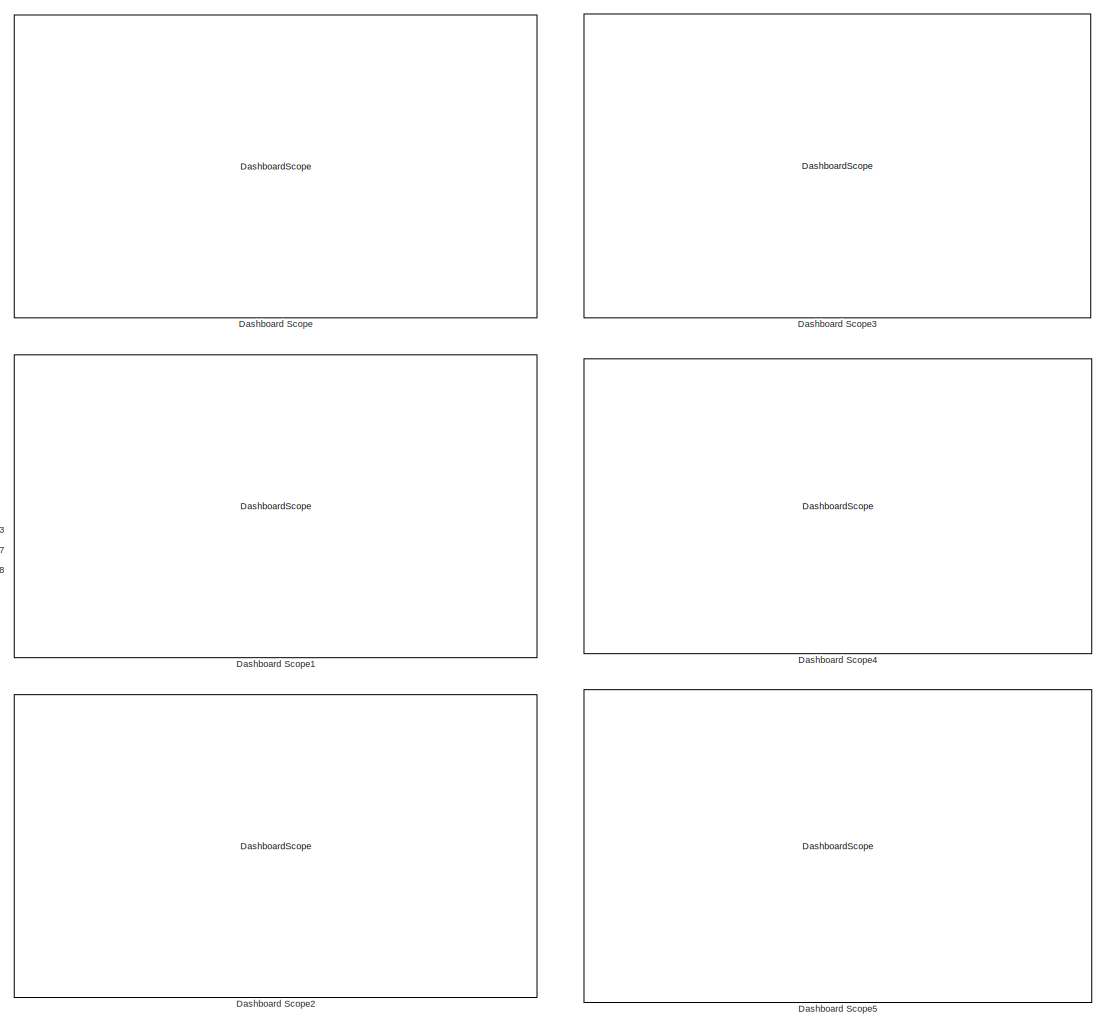
[diagram: root canvas - part 1/2, right side, full height]
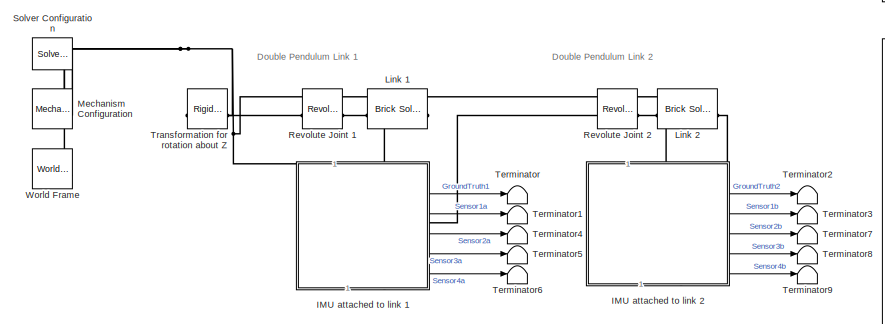
[diagram: root canvas - part 2/2, middle left region]
MODEL slx_7381e107e418
KIND model
CONFIG AbsTol = 1e-3
CONFIG EnableMultiTasking = on
CONFIG FixedStep = auto
CONFIG MaxStep = 0.01
CONFIG MinStep = auto
CONFIG RelTol = 1e-3
CONFIG SampleTimeConstraint = Unconstrained
CONFIG SolverName = VariableStepAuto
CONFIG StartTime = 0.0
CONFIG StopTime = 10.0
BLOCK [DashboardScope] Dashboard Scope
BLOCK [DashboardScope] Dashboard Scope1
BLOCK [DashboardScope] Dashboard Scope2
BLOCK [DashboardScope] Dashboard Scope3
BLOCK [DashboardScope] Dashboard Scope4
BLOCK [DashboardScope] Dashboard Scope5
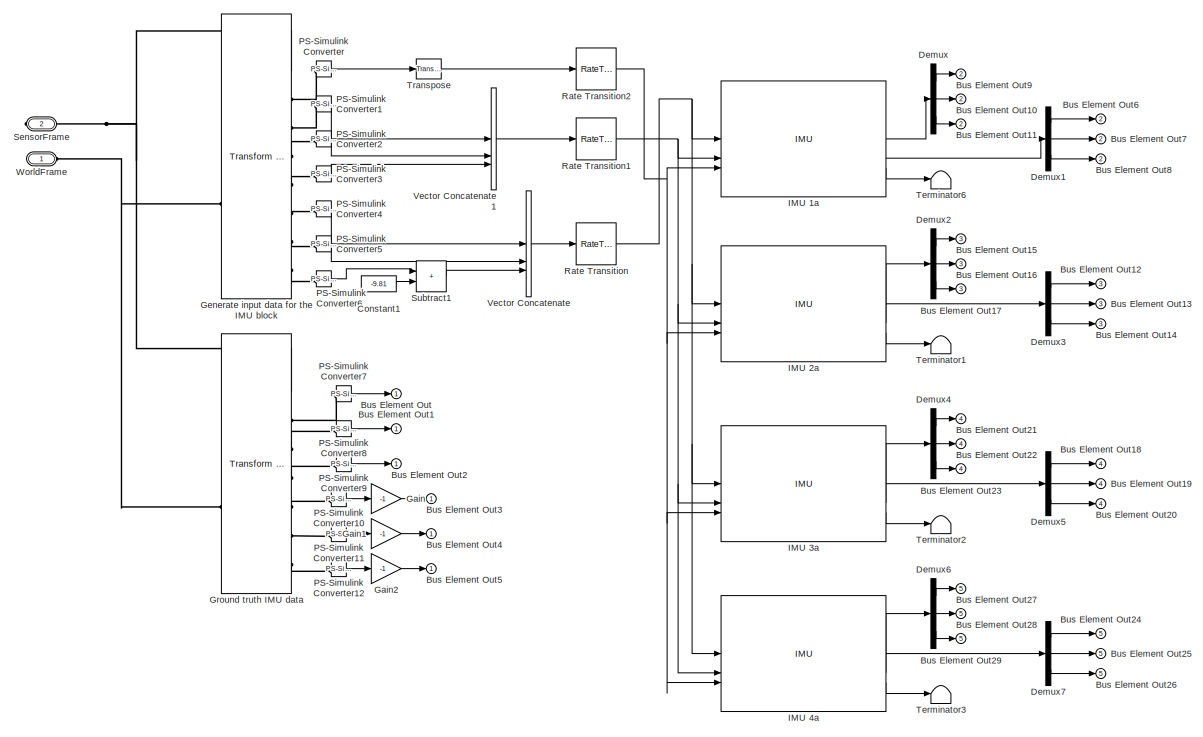
[diagram: IMU attached to link 1 - part 1/2, middle left region]
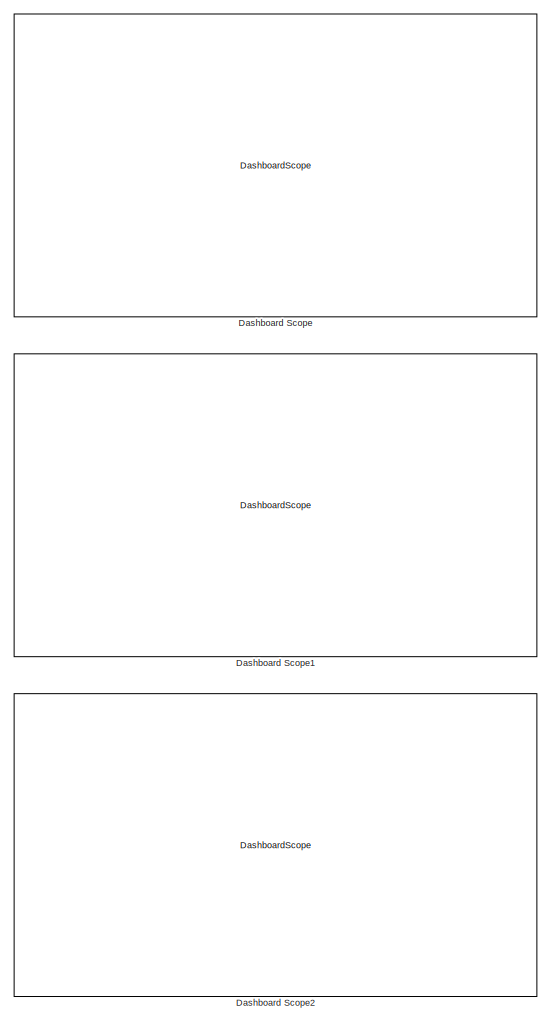
[diagram: IMU attached to link 1 - part 2/2, right side, full height]
BLOCK [SubSystem] IMU attached to link 1
  PortSchema = {"entries":[{"content":{"sides":[{"content":{},"type":"ConnectorPlacement.EquallySpacedRectSide","uuid":"7a848249-f78c-431e-84de-981fe01eaf41"},{"content":{"side":"RIGHT"},"type":"ConnectorPlacement.EquallySpacedRectSide","uuid":"a7aca224-ae93-4c7d-a6de-e3d97876bf59"},{"content":{"connectorIds":["LConn1"],"side":"TOP"},"type":"ConnectorPlacement.EquallySpacedRectSide","uuid":"e9c2225b-3f07-428c-8b...<+389ch>
BLOCK [Outport] IMU attached to link 1/Bus Element Out
BLOCK [Outport] IMU attached to link 1/Bus Element Out1
BLOCK [Outport] IMU attached to link 1/Bus Element Out10
  Port = 2
BLOCK [Outport] IMU attached to link 1/Bus Element Out11
  Port = 2
BLOCK [Outport] IMU attached to link 1/Bus Element Out12
  Port = 3
BLOCK [Outport] IMU attached to link 1/Bus Element Out13
  Port = 3
BLOCK [Outport] IMU attached to link 1/Bus Element Out14
  Port = 3
BLOCK [Outport] IMU attached to link 1/Bus Element Out15
  Port = 3
BLOCK [Outport] IMU attached to link 1/Bus Element Out16
  Port = 3
BLOCK [Outport] IMU attached to link 1/Bus Element Out17
  Port = 3
BLOCK [Outport] IMU attached to link 1/Bus Element Out18
  Port = 4
BLOCK [Outport] IMU attached to link 1/Bus Element Out19
  Port = 4
BLOCK [Outport] IMU attached to link 1/Bus Element Out2
BLOCK [Outport] IMU attached to link 1/Bus Element Out20
  Port = 4
BLOCK [Outport] IMU attached to link 1/Bus Element Out21
  Port = 4
BLOCK [Outport] IMU attached to link 1/Bus Element Out22
  Port = 4
BLOCK [Outport] IMU attached to link 1/Bus Element Out23
  Port = 4
BLOCK [Outport] IMU attached to link 1/Bus Element Out24
  Port = 5
BLOCK [Outport] IMU attached to link 1/Bus Element Out25
  Port = 5
BLOCK [Outport] IMU attached to link 1/Bus Element Out26
  Port = 5
BLOCK [Outport] IMU attached to link 1/Bus Element Out27
  Port = 5
BLOCK [Outport] IMU attached to link 1/Bus Element Out28
  Port = 5
BLOCK [Outport] IMU attached to link 1/Bus Element Out29
  Port = 5
BLOCK [Outport] IMU attached to link 1/Bus Element Out3
BLOCK [Outport] IMU attached to link 1/Bus Element Out4
BLOCK [Outport] IMU attached to link 1/Bus Element Out5
BLOCK [Outport] IMU attached to link 1/Bus Element Out6
  Port = 2
BLOCK [Outport] IMU attached to link 1/Bus Element Out7
  Port = 2
BLOCK [Outport] IMU attached to link 1/Bus Element Out8
  Port = 2
BLOCK [Outport] IMU attached to link 1/Bus Element Out9
  Port = 2
BLOCK [Constant] IMU attached to link 1/Constant1
  Value = -9.81
BLOCK [DashboardScope] IMU attached to link 1/Dashboard Scope
BLOCK [DashboardScope] IMU attached to link 1/Dashboard Scope1
BLOCK [DashboardScope] IMU attached to link 1/Dashboard Scope2
BLOCK [Demux] IMU attached to link 1/Demux
  Outputs = 3
BLOCK [Demux] IMU attached to link 1/Demux1
  Outputs = 3
BLOCK [Demux] IMU attached to link 1/Demux2
  Outputs = 3
BLOCK [Demux] IMU attached to link 1/Demux3
  Outputs = 3
BLOCK [Demux] IMU attached to link 1/Demux4
  Outputs = 3
BLOCK [Demux] IMU attached to link 1/Demux5
  Outputs = 3
BLOCK [Demux] IMU attached to link 1/Demux6
  Outputs = 3
BLOCK [Demux] IMU attached to link 1/Demux7
  Outputs = 3
BLOCK [Gain] IMU attached to link 1/Gain
  Gain = -1
BLOCK [Gain] IMU attached to link 1/Gain1
  Gain = -1
BLOCK [Gain] IMU attached to link 1/Gain2
  Gain = -1
BLOCK [Reference] IMU attached to link 1/Generate input data for the IMU block  REF=sm_lib/Frames and
Transforms/Transform
Sensor
  SourceBlock = sm_lib/Frames and\nTransforms/Transform\nSensor
  SourceType = Transform\nSensor
BLOCK [Reference] IMU attached to link 1/Ground truth IMU data  REF=sm_lib/Frames and
Transforms/Transform
Sensor
  SourceBlock = sm_lib/Frames and\nTransforms/Transform\nSensor
  SourceType = Transform\nSensor
BLOCK [Reference] IMU attached to link 1/IMU 1a  REF=mspsensorlib/IMU
  SourceBlock = mspsensorlib/IMU
  SourceType = fusion.simulink.imuSensor
BLOCK [Reference] IMU attached to link 1/IMU 2a  REF=mspsensorlib/IMU
  SourceBlock = mspsensorlib/IMU
  SourceType = fusion.simulink.imuSensor
BLOCK [Reference] IMU attached to link 1/IMU 3a  REF=mspsensorlib/IMU
  SourceBlock = mspsensorlib/IMU
  SourceType = fusion.simulink.imuSensor
BLOCK [Reference] IMU attached to link 1/IMU 4a  REF=mspsensorlib/IMU
  SourceBlock = mspsensorlib/IMU
  SourceType = fusion.simulink.imuSensor
BLOCK [Reference] IMU attached to link 1/PS-Simulink Converter  REF=nesl_utility/PS-Simulink
Converter
  SourceBlock = nesl_utility/PS-Simulink\nConverter
  SourceType = PS-Simulink\nConverter
BLOCK [Reference] IMU attached to link 1/PS-Simulink Converter1  REF=nesl_utility/PS-Simulink
Converter
  SourceBlock = nesl_utility/PS-Simulink\nConverter
  SourceType = PS-Simulink\nConverter
BLOCK [Reference] IMU attached to link 1/PS-Simulink Converter10  REF=nesl_utility/PS-Simulink
Converter
  SourceBlock = nesl_utility/PS-Simulink\nConverter
  SourceType = PS-Simulink\nConverter
BLOCK [Reference] IMU attached to link 1/PS-Simulink Converter11  REF=nesl_utility/PS-Simulink
Converter
  SourceBlock = nesl_utility/PS-Simulink\nConverter
  SourceType = PS-Simulink\nConverter
BLOCK [Reference] IMU attached to link 1/PS-Simulink Converter12  REF=nesl_utility/PS-Simulink
Converter
  SourceBlock = nesl_utility/PS-Simulink\nConverter
  SourceType = PS-Simulink\nConverter
BLOCK [Reference] IMU attached to link 1/PS-Simulink Converter2  REF=nesl_utility/PS-Simulink
Converter
  SourceBlock = nesl_utility/PS-Simulink\nConverter
  SourceType = PS-Simulink\nConverter
BLOCK [Reference] IMU attached to link 1/PS-Simulink Converter3  REF=nesl_utility/PS-Simulink
Converter
  SourceBlock = nesl_utility/PS-Simulink\nConverter
  SourceType = PS-Simulink\nConverter
BLOCK [Reference] IMU attached to link 1/PS-Simulink Converter4  REF=nesl_utility/PS-Simulink
Converter
  SourceBlock = nesl_utility/PS-Simulink\nConverter
  SourceType = PS-Simulink\nConverter
BLOCK [Reference] IMU attached to link 1/PS-Simulink Converter5  REF=nesl_utility/PS-Simulink
Converter
  SourceBlock = nesl_utility/PS-Simulink\nConverter
  SourceType = PS-Simulink\nConverter
BLOCK [Reference] IMU attached to link 1/PS-Simulink Converter6  REF=nesl_utility/PS-Simulink
Converter
  SourceBlock = nesl_utility/PS-Simulink\nConverter
  SourceType = PS-Simulink\nConverter
BLOCK [Reference] IMU attached to link 1/PS-Simulink Converter7  REF=nesl_utility/PS-Simulink
Converter
  SourceBlock = nesl_utility/PS-Simulink\nConverter
  SourceType = PS-Simulink\nConverter
BLOCK [Reference] IMU attached to link 1/PS-Simulink Converter8  REF=nesl_utility/PS-Simulink
Converter
  SourceBlock = nesl_utility/PS-Simulink\nConverter
  SourceType = PS-Simulink\nConverter
BLOCK [Reference] IMU attached to link 1/PS-Simulink Converter9  REF=nesl_utility/PS-Simulink
Converter
  SourceBlock = nesl_utility/PS-Simulink\nConverter
  SourceType = PS-Simulink\nConverter
BLOCK [RateTransition] IMU attached to link 1/Rate Transition
  OutPortSampleTime = Fs_time
BLOCK [RateTransition] IMU attached to link 1/Rate Transition1
  OutPortSampleTime = Fs_time
BLOCK [RateTransition] IMU attached to link 1/Rate Transition2
  OutPortSampleTime = Fs_time
BLOCK [PMIOPort] IMU attached to link 1/SensorFrame
  Port = 2
  Side = Right
BLOCK [Sum] IMU attached to link 1/Subtract1
  IconShape = rectangular
BLOCK [Terminator] IMU attached to link 1/Terminator1
BLOCK [Terminator] IMU attached to link 1/Terminator2
BLOCK [Terminator] IMU attached to link 1/Terminator3
BLOCK [Terminator] IMU attached to link 1/Terminator6
BLOCK [Reference] IMU attached to link 1/Transpose  REF=matrix_library/Transpose
  LibrarySourceBlock = simulink/Matrix\nOperations/Transpose
  SourceBlock = matrix_library/Transpose
  SourceType = Transpose
BLOCK [Concatenate] IMU attached to link 1/Vector Concatenate
  ConcatenateDimension = 2
  Mode = Multidimensional array
  NumInputs = 3
BLOCK [Concatenate] IMU attached to link 1/Vector Concatenate1
  ConcatenateDimension = 2
  Mode = Multidimensional array
  NumInputs = 3
BLOCK [PMIOPort] IMU attached to link 1/WorldFrame
  Side = Left
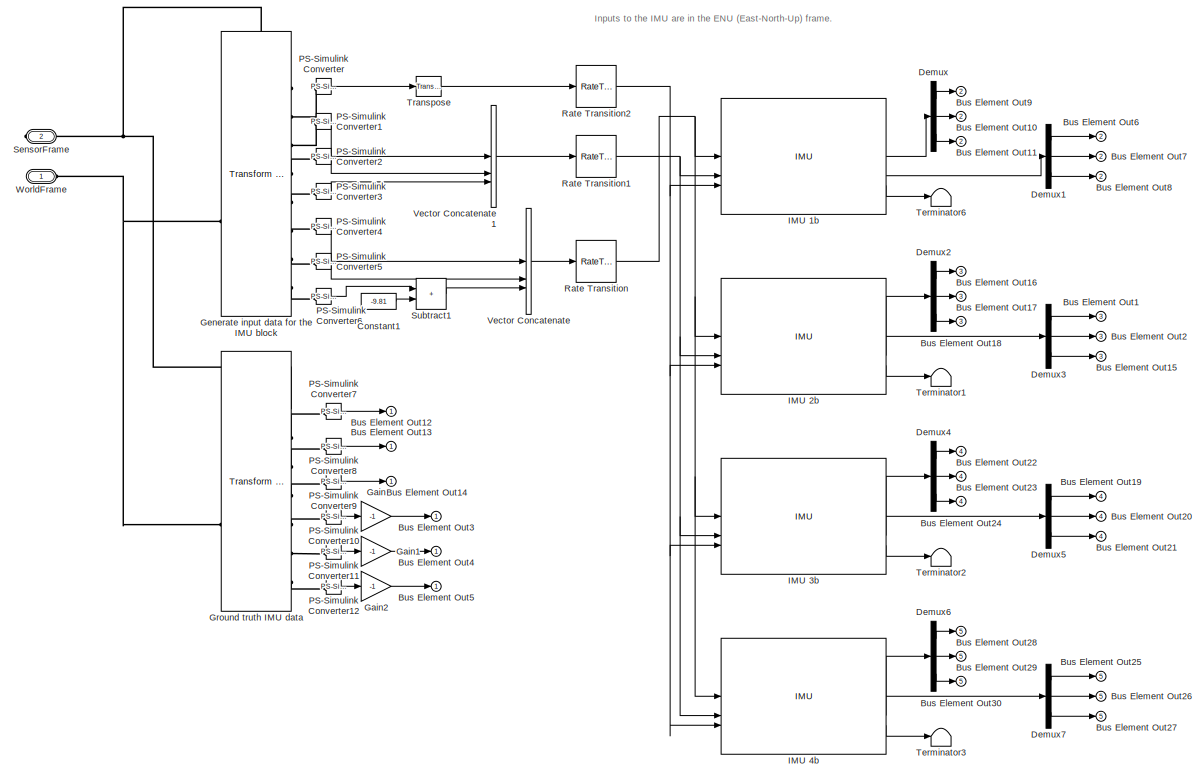
[diagram: IMU attached to link 2 - part 1/2, middle left region]
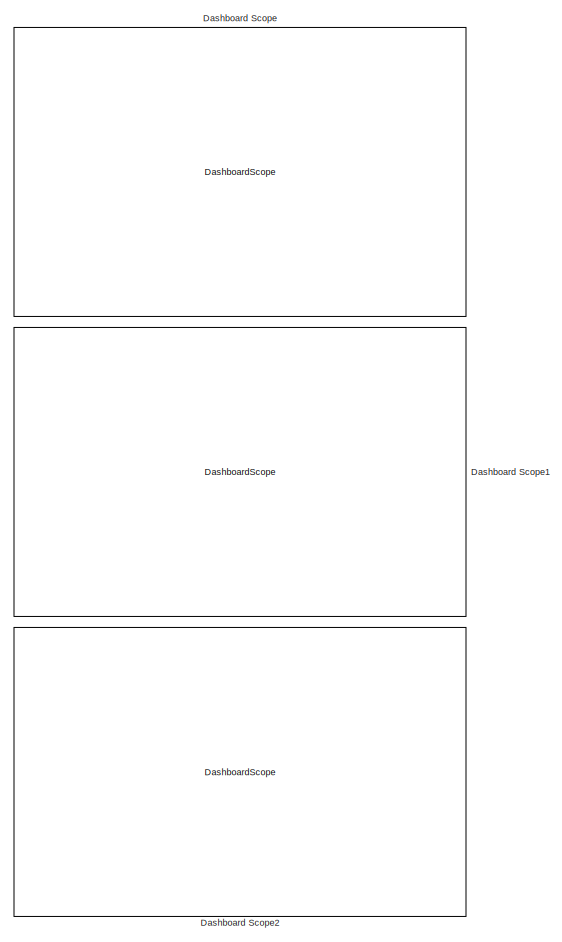
[diagram: IMU attached to link 2 - part 2/2, right side, full height]
BLOCK [SubSystem] IMU attached to link 2
  PortSchema = {"entries":[{"content":{"sides":[{"content":{},"type":"ConnectorPlacement.EquallySpacedRectSide","uuid":"7a848249-f78c-431e-84de-981fe01eaf41"},{"content":{"side":"RIGHT"},"type":"ConnectorPlacement.EquallySpacedRectSide","uuid":"a7aca224-ae93-4c7d-a6de-e3d97876bf59"},{"content":{"connectorIds":["LConn1"],"side":"TOP"},"type":"ConnectorPlacement.EquallySpacedRectSide","uuid":"e9c2225b-3f07-428c-8b...<+389ch>
BLOCK [Outport] IMU attached to link 2/Bus Element Out1
  Port = 3
BLOCK [Outport] IMU attached to link 2/Bus Element Out10
  Port = 2
BLOCK [Outport] IMU attached to link 2/Bus Element Out11
  Port = 2
BLOCK [Outport] IMU attached to link 2/Bus Element Out12
BLOCK [Outport] IMU attached to link 2/Bus Element Out13
BLOCK [Outport] IMU attached to link 2/Bus Element Out14
BLOCK [Outport] IMU attached to link 2/Bus Element Out15
  Port = 3
BLOCK [Outport] IMU attached to link 2/Bus Element Out16
  Port = 3
BLOCK [Outport] IMU attached to link 2/Bus Element Out17
  Port = 3
BLOCK [Outport] IMU attached to link 2/Bus Element Out18
  Port = 3
BLOCK [Outport] IMU attached to link 2/Bus Element Out19
  Port = 4
BLOCK [Outport] IMU attached to link 2/Bus Element Out2
  Port = 3
BLOCK [Outport] IMU attached to link 2/Bus Element Out20
  Port = 4
BLOCK [Outport] IMU attached to link 2/Bus Element Out21
  Port = 4
BLOCK [Outport] IMU attached to link 2/Bus Element Out22
  Port = 4
BLOCK [Outport] IMU attached to link 2/Bus Element Out23
  Port = 4
BLOCK [Outport] IMU attached to link 2/Bus Element Out24
  Port = 4
BLOCK [Outport] IMU attached to link 2/Bus Element Out25
  Port = 5
BLOCK [Outport] IMU attached to link 2/Bus Element Out26
  Port = 5
BLOCK [Outport] IMU attached to link 2/Bus Element Out27
  Port = 5
BLOCK [Outport] IMU attached to link 2/Bus Element Out28
  Port = 5
BLOCK [Outport] IMU attached to link 2/Bus Element Out29
  Port = 5
BLOCK [Outport] IMU attached to link 2/Bus Element Out3
BLOCK [Outport] IMU attached to link 2/Bus Element Out30
  Port = 5
BLOCK [Outport] IMU attached to link 2/Bus Element Out4
BLOCK [Outport] IMU attached to link 2/Bus Element Out5
BLOCK [Outport] IMU attached to link 2/Bus Element Out6
  Port = 2
BLOCK [Outport] IMU attached to link 2/Bus Element Out7
  Port = 2
BLOCK [Outport] IMU attached to link 2/Bus Element Out8
  Port = 2
BLOCK [Outport] IMU attached to link 2/Bus Element Out9
  Port = 2
BLOCK [Constant] IMU attached to link 2/Constant1
  Value = -9.81
BLOCK [DashboardScope] IMU attached to link 2/Dashboard Scope
BLOCK [DashboardScope] IMU attached to link 2/Dashboard Scope1
BLOCK [DashboardScope] IMU attached to link 2/Dashboard Scope2
BLOCK [Demux] IMU attached to link 2/Demux
  Outputs = 3
BLOCK [Demux] IMU attached to link 2/Demux1
  Outputs = 3
BLOCK [Demux] IMU attached to link 2/Demux2
  Outputs = 3
BLOCK [Demux] IMU attached to link 2/Demux3
  Outputs = 3
BLOCK [Demux] IMU attached to link 2/Demux4
  Outputs = 3
BLOCK [Demux] IMU attached to link 2/Demux5
  Outputs = 3
BLOCK [Demux] IMU attached to link 2/Demux6
  Outputs = 3
BLOCK [Demux] IMU attached to link 2/Demux7
  Outputs = 3
BLOCK [Gain] IMU attached to link 2/Gain
  Gain = -1
BLOCK [Gain] IMU attached to link 2/Gain1
  Gain = -1
BLOCK [Gain] IMU attached to link 2/Gain2
  Gain = -1
BLOCK [Reference] IMU attached to link 2/Generate input data for the IMU block  REF=sm_lib/Frames and
Transforms/Transform
Sensor
  SourceBlock = sm_lib/Frames and\nTransforms/Transform\nSensor
  SourceType = Transform\nSensor
BLOCK [Reference] IMU attached to link 2/Ground truth IMU data  REF=sm_lib/Frames and
Transforms/Transform
Sensor
  SourceBlock = sm_lib/Frames and\nTransforms/Transform\nSensor
  SourceType = Transform\nSensor
BLOCK [Reference] IMU attached to link 2/IMU 1b  REF=mspsensorlib/IMU
  SourceBlock = mspsensorlib/IMU
  SourceType = fusion.simulink.imuSensor
BLOCK [Reference] IMU attached to link 2/IMU 2b  REF=mspsensorlib/IMU
  SourceBlock = mspsensorlib/IMU
  SourceType = fusion.simulink.imuSensor
BLOCK [Reference] IMU attached to link 2/IMU 3b  REF=mspsensorlib/IMU
  SourceBlock = mspsensorlib/IMU
  SourceType = fusion.simulink.imuSensor
BLOCK [Reference] IMU attached to link 2/IMU 4b  REF=mspsensorlib/IMU
  SourceBlock = mspsensorlib/IMU
  SourceType = fusion.simulink.imuSensor
BLOCK [Reference] IMU attached to link 2/PS-Simulink Converter  REF=nesl_utility/PS-Simulink
Converter
  SourceBlock = nesl_utility/PS-Simulink\nConverter
  SourceType = PS-Simulink\nConverter
BLOCK [Reference] IMU attached to link 2/PS-Simulink Converter1  REF=nesl_utility/PS-Simulink
Converter
  SourceBlock = nesl_utility/PS-Simulink\nConverter
  SourceType = PS-Simulink\nConverter
BLOCK [Reference] IMU attached to link 2/PS-Simulink Converter10  REF=nesl_utility/PS-Simulink
Converter
  SourceBlock = nesl_utility/PS-Simulink\nConverter
  SourceType = PS-Simulink\nConverter
BLOCK [Reference] IMU attached to link 2/PS-Simulink Converter11  REF=nesl_utility/PS-Simulink
Converter
  SourceBlock = nesl_utility/PS-Simulink\nConverter
  SourceType = PS-Simulink\nConverter
BLOCK [Reference] IMU attached to link 2/PS-Simulink Converter12  REF=nesl_utility/PS-Simulink
Converter
  SourceBlock = nesl_utility/PS-Simulink\nConverter
  SourceType = PS-Simulink\nConverter
BLOCK [Reference] IMU attached to link 2/PS-Simulink Converter2  REF=nesl_utility/PS-Simulink
Converter
  SourceBlock = nesl_utility/PS-Simulink\nConverter
  SourceType = PS-Simulink\nConverter
BLOCK [Reference] IMU attached to link 2/PS-Simulink Converter3  REF=nesl_utility/PS-Simulink
Converter
  SourceBlock = nesl_utility/PS-Simulink\nConverter
  SourceType = PS-Simulink\nConverter
BLOCK [Reference] IMU attached to link 2/PS-Simulink Converter4  REF=nesl_utility/PS-Simulink
Converter
  SourceBlock = nesl_utility/PS-Simulink\nConverter
  SourceType = PS-Simulink\nConverter
BLOCK [Reference] IMU attached to link 2/PS-Simulink Converter5  REF=nesl_utility/PS-Simulink
Converter
  SourceBlock = nesl_utility/PS-Simulink\nConverter
  SourceType = PS-Simulink\nConverter
BLOCK [Reference] IMU attached to link 2/PS-Simulink Converter6  REF=nesl_utility/PS-Simulink
Converter
  SourceBlock = nesl_utility/PS-Simulink\nConverter
  SourceType = PS-Simulink\nConverter
BLOCK [Reference] IMU attached to link 2/PS-Simulink Converter7  REF=nesl_utility/PS-Simulink
Converter
  SourceBlock = nesl_utility/PS-Simulink\nConverter
  SourceType = PS-Simulink\nConverter
BLOCK [Reference] IMU attached to link 2/PS-Simulink Converter8  REF=nesl_utility/PS-Simulink
Converter
  SourceBlock = nesl_utility/PS-Simulink\nConverter
  SourceType = PS-Simulink\nConverter
BLOCK [Reference] IMU attached to link 2/PS-Simulink Converter9  REF=nesl_utility/PS-Simulink
Converter
  SourceBlock = nesl_utility/PS-Simulink\nConverter
  SourceType = PS-Simulink\nConverter
BLOCK [RateTransition] IMU attached to link 2/Rate Transition
  OutPortSampleTime = Fs_time
BLOCK [RateTransition] IMU attached to link 2/Rate Transition1
  OutPortSampleTime = Fs_time
BLOCK [RateTransition] IMU attached to link 2/Rate Transition2
  OutPortSampleTime = Fs_time
BLOCK [PMIOPort] IMU attached to link 2/SensorFrame
  Port = 2
  Side = Right
BLOCK [Sum] IMU attached to link 2/Subtract1
  IconShape = rectangular
BLOCK [Terminator] IMU attached to link 2/Terminator1
BLOCK [Terminator] IMU attached to link 2/Terminator2
BLOCK [Terminator] IMU attached to link 2/Terminator3
BLOCK [Terminator] IMU attached to link 2/Terminator6
BLOCK [Reference] IMU attached to link 2/Transpose  REF=matrix_library/Transpose
  LibrarySourceBlock = simulink/Matrix\nOperations/Transpose
  SourceBlock = matrix_library/Transpose
  SourceType = Transpose
BLOCK [Concatenate] IMU attached to link 2/Vector Concatenate
  ConcatenateDimension = 2
  Mode = Multidimensional array
  NumInputs = 3
BLOCK [Concatenate] IMU attached to link 2/Vector Concatenate1
  ConcatenateDimension = 2
  Mode = Multidimensional array
  NumInputs = 3
BLOCK [PMIOPort] IMU attached to link 2/WorldFrame
  Side = Left
BLOCK [Reference] Link 1  REF=sm_lib/Body Elements/Brick Solid
  SourceBlock = sm_lib/Body Elements/Brick Solid
  SourceType = Brick Solid
BLOCK [Reference] Link 2  REF=sm_lib/Body Elements/Brick Solid
  SourceBlock = sm_lib/Body Elements/Brick Solid
  SourceType = Brick Solid
BLOCK [Reference] Mechanism Configuration  REF=sm_lib/Utilities/Mechanism
Configuration
  SourceBlock = sm_lib/Utilities/Mechanism\nConfiguration
  SourceType = Mechanism\nConfiguration
BLOCK [Reference] Revolute Joint 1  REF=sm_lib/Joints/Revolute Joint
  SourceBlock = sm_lib/Joints/Revolute Joint
  SourceType = Revolute Joint
BLOCK [Reference] Revolute Joint 2  REF=sm_lib/Joints/Revolute Joint
  SourceBlock = sm_lib/Joints/Revolute Joint
  SourceType = Revolute Joint
BLOCK [Reference] Solver Configuration  REF=nesl_utility/Solver
Configuration
  SourceBlock = nesl_utility/Solver\nConfiguration
  SourceType = Solver\nConfiguration
BLOCK [Terminator] Terminator
BLOCK [Terminator] Terminator1
BLOCK [Terminator] Terminator2
BLOCK [Terminator] Terminator3
BLOCK [Terminator] Terminator4
BLOCK [Terminator] Terminator5
BLOCK [Terminator] Terminator6
BLOCK [Terminator] Terminator7
BLOCK [Terminator] Terminator8
BLOCK [Terminator] Terminator9
BLOCK [Reference] Transformation for rotation about Z  REF=sm_lib/Frames and
Transforms/Rigid
Transform
  SourceBlock = sm_lib/Frames and\nTransforms/Rigid\nTransform
  SourceType = Rigid\nTransform
BLOCK [Reference] World Frame  REF=sm_lib/Frames and
Transforms/World Frame
  SourceBlock = sm_lib/Frames and\nTransforms/World Frame
  SourceType = World Frame
ANNOTATION (root): Double Pendulum Link 1
ANNOTATION (root): Double Pendulum Link 2
ANNOTATION IMU attached to link 2: Inputs to the IMU are in the ENU (East-North-Up) frame.
LINE IMU attached to link 1/Constant1:1 -> IMU attached to link 1/Subtract1:2
LINE IMU attached to link 1/Demux1:1 -> IMU attached to link 1/Bus Element Out6:1
LINE IMU attached to link 1/Demux1:2 -> IMU attached to link 1/Bus Element Out7:1
LINE IMU attached to link 1/Demux1:3 -> IMU attached to link 1/Bus Element Out8:1
LINE IMU attached to link 1/Demux2:1 -> IMU attached to link 1/Bus Element Out15:1
LINE IMU attached to link 1/Demux2:2 -> IMU attached to link 1/Bus Element Out16:1
LINE IMU attached to link 1/Demux2:3 -> IMU attached to link 1/Bus Element Out17:1
LINE IMU attached to link 1/Demux3:1 -> IMU attached to link 1/Bus Element Out12:1
LINE IMU attached to link 1/Demux3:2 -> IMU attached to link 1/Bus Element Out13:1
LINE IMU attached to link 1/Demux3:3 -> IMU attached to link 1/Bus Element Out14:1
LINE IMU attached to link 1/Demux4:1 -> IMU attached to link 1/Bus Element Out21:1
LINE IMU attached to link 1/Demux4:2 -> IMU attached to link 1/Bus Element Out22:1
LINE IMU attached to link 1/Demux4:3 -> IMU attached to link 1/Bus Element Out23:1
LINE IMU attached to link 1/Demux5:1 -> IMU attached to link 1/Bus Element Out18:1
LINE IMU attached to link 1/Demux5:2 -> IMU attached to link 1/Bus Element Out19:1
LINE IMU attached to link 1/Demux5:3 -> IMU attached to link 1/Bus Element Out20:1
LINE IMU attached to link 1/Demux6:1 -> IMU attached to link 1/Bus Element Out27:1
LINE IMU attached to link 1/Demux6:2 -> IMU attached to link 1/Bus Element Out28:1
LINE IMU attached to link 1/Demux6:3 -> IMU attached to link 1/Bus Element Out29:1
LINE IMU attached to link 1/Demux7:1 -> IMU attached to link 1/Bus Element Out24:1
LINE IMU attached to link 1/Demux7:2 -> IMU attached to link 1/Bus Element Out25:1
LINE IMU attached to link 1/Demux7:3 -> IMU attached to link 1/Bus Element Out26:1
LINE IMU attached to link 1/Demux:1 -> IMU attached to link 1/Bus Element Out9:1
LINE IMU attached to link 1/Demux:2 -> IMU attached to link 1/Bus Element Out10:1
LINE IMU attached to link 1/Demux:3 -> IMU attached to link 1/Bus Element Out11:1
LINE IMU attached to link 1/Gain1:1 -> IMU attached to link 1/Bus Element Out4:1
LINE IMU attached to link 1/Gain2:1 -> IMU attached to link 1/Bus Element Out5:1
LINE IMU attached to link 1/Gain:1 -> IMU attached to link 1/Bus Element Out3:1
LINE IMU attached to link 1/IMU 1a:1 -> IMU attached to link 1/Demux:1
LINE IMU attached to link 1/IMU 1a:2 -> IMU attached to link 1/Demux1:1
LINE IMU attached to link 1/IMU 1a:3 -> IMU attached to link 1/Terminator6:1
LINE IMU attached to link 1/IMU 2a:1 -> IMU attached to link 1/Demux2:1
LINE IMU attached to link 1/IMU 2a:2 -> IMU attached to link 1/Demux3:1
LINE IMU attached to link 1/IMU 2a:3 -> IMU attached to link 1/Terminator1:1
LINE IMU attached to link 1/IMU 3a:1 -> IMU attached to link 1/Demux4:1
LINE IMU attached to link 1/IMU 3a:2 -> IMU attached to link 1/Demux5:1
LINE IMU attached to link 1/IMU 3a:3 -> IMU attached to link 1/Terminator2:1
LINE IMU attached to link 1/IMU 4a:1 -> IMU attached to link 1/Demux6:1
LINE IMU attached to link 1/IMU 4a:2 -> IMU attached to link 1/Demux7:1
LINE IMU attached to link 1/IMU 4a:3 -> IMU attached to link 1/Terminator3:1
LINE IMU attached to link 1/PS-Simulink Converter10:1 -> IMU attached to link 1/Gain:1
LINE IMU attached to link 1/PS-Simulink Converter11:1 -> IMU attached to link 1/Gain1:1
LINE IMU attached to link 1/PS-Simulink Converter12:1 -> IMU attached to link 1/Gain2:1
LINE IMU attached to link 1/PS-Simulink Converter1:1 -> IMU attached to link 1/Vector Concatenate1:1
LINE IMU attached to link 1/PS-Simulink Converter2:1 -> IMU attached to link 1/Vector Concatenate1:2
LINE IMU attached to link 1/PS-Simulink Converter3:1 -> IMU attached to link 1/Vector Concatenate1:3
LINE IMU attached to link 1/PS-Simulink Converter4:1 -> IMU attached to link 1/Vector Concatenate:1
LINE IMU attached to link 1/PS-Simulink Converter5:1 -> IMU attached to link 1/Vector Concatenate:2
LINE IMU attached to link 1/PS-Simulink Converter6:1 -> IMU attached to link 1/Subtract1:1
LINE IMU attached to link 1/PS-Simulink Converter7:1 -> IMU attached to link 1/Bus Element Out:1
LINE IMU attached to link 1/PS-Simulink Converter8:1 -> IMU attached to link 1/Bus Element Out1:1
LINE IMU attached to link 1/PS-Simulink Converter9:1 -> IMU attached to link 1/Bus Element Out2:1
LINE IMU attached to link 1/PS-Simulink Converter:1 -> IMU attached to link 1/Transpose:1
NET IMU attached to link 1/Rate Transition1:1 -> IMU attached to link 1/IMU 1a:2, IMU attached to link 1/IMU 2a:2, IMU attached to link 1/IMU 3a:2, IMU attached to link 1/IMU 4a:2
NET IMU attached to link 1/Rate Transition2:1 -> IMU attached to link 1/IMU 1a:3, IMU attached to link 1/IMU 2a:3, IMU attached to link 1/IMU 3a:3, IMU attached to link 1/IMU 4a:3
NET IMU attached to link 1/Rate Transition:1 -> IMU attached to link 1/IMU 1a:1, IMU attached to link 1/IMU 2a:1, IMU attached to link 1/IMU 3a:1, IMU attached to link 1/IMU 4a:1
LINE IMU attached to link 1/Subtract1:1 -> IMU attached to link 1/Vector Concatenate:3
LINE IMU attached to link 1/Transpose:1 -> IMU attached to link 1/Rate Transition2:1
LINE IMU attached to link 1/Vector Concatenate1:1 -> IMU attached to link 1/Rate Transition1:1
LINE IMU attached to link 1/Vector Concatenate:1 -> IMU attached to link 1/Rate Transition:1
LINE IMU attached to link 1:1 -> Terminator:1
LINE IMU attached to link 1:2 -> Terminator1:1
LINE IMU attached to link 1:3 -> Terminator4:1
LINE IMU attached to link 1:4 -> Terminator5:1
LINE IMU attached to link 1:5 -> Terminator6:1
LINE IMU attached to link 2/Constant1:1 -> IMU attached to link 2/Subtract1:2
LINE IMU attached to link 2/Demux1:1 -> IMU attached to link 2/Bus Element Out6:1
LINE IMU attached to link 2/Demux1:2 -> IMU attached to link 2/Bus Element Out7:1
LINE IMU attached to link 2/Demux1:3 -> IMU attached to link 2/Bus Element Out8:1
LINE IMU attached to link 2/Demux2:1 -> IMU attached to link 2/Bus Element Out16:1
LINE IMU attached to link 2/Demux2:2 -> IMU attached to link 2/Bus Element Out17:1
LINE IMU attached to link 2/Demux2:3 -> IMU attached to link 2/Bus Element Out18:1
LINE IMU attached to link 2/Demux3:1 -> IMU attached to link 2/Bus Element Out1:1
LINE IMU attached to link 2/Demux3:2 -> IMU attached to link 2/Bus Element Out2:1
LINE IMU attached to link 2/Demux3:3 -> IMU attached to link 2/Bus Element Out15:1
LINE IMU attached to link 2/Demux4:1 -> IMU attached to link 2/Bus Element Out22:1
LINE IMU attached to link 2/Demux4:2 -> IMU attached to link 2/Bus Element Out23:1
LINE IMU attached to link 2/Demux4:3 -> IMU attached to link 2/Bus Element Out24:1
LINE IMU attached to link 2/Demux5:1 -> IMU attached to link 2/Bus Element Out19:1
LINE IMU attached to link 2/Demux5:2 -> IMU attached to link 2/Bus Element Out20:1
LINE IMU attached to link 2/Demux5:3 -> IMU attached to link 2/Bus Element Out21:1
LINE IMU attached to link 2/Demux6:1 -> IMU attached to link 2/Bus Element Out28:1
LINE IMU attached to link 2/Demux6:2 -> IMU attached to link 2/Bus Element Out29:1
LINE IMU attached to link 2/Demux6:3 -> IMU attached to link 2/Bus Element Out30:1
LINE IMU attached to link 2/Demux7:1 -> IMU attached to link 2/Bus Element Out25:1
LINE IMU attached to link 2/Demux7:2 -> IMU attached to link 2/Bus Element Out26:1
LINE IMU attached to link 2/Demux7:3 -> IMU attached to link 2/Bus Element Out27:1
LINE IMU attached to link 2/Demux:1 -> IMU attached to link 2/Bus Element Out9:1
LINE IMU attached to link 2/Demux:2 -> IMU attached to link 2/Bus Element Out10:1
LINE IMU attached to link 2/Demux:3 -> IMU attached to link 2/Bus Element Out11:1
LINE IMU attached to link 2/Gain1:1 -> IMU attached to link 2/Bus Element Out4:1
LINE IMU attached to link 2/Gain2:1 -> IMU attached to link 2/Bus Element Out5:1
LINE IMU attached to link 2/Gain:1 -> IMU attached to link 2/Bus Element Out3:1
LINE IMU attached to link 2/IMU 1b:1 -> IMU attached to link 2/Demux:1
LINE IMU attached to link 2/IMU 1b:2 -> IMU attached to link 2/Demux1:1
LINE IMU attached to link 2/IMU 1b:3 -> IMU attached to link 2/Terminator6:1
LINE IMU attached to link 2/IMU 2b:1 -> IMU attached to link 2/Demux2:1
LINE IMU attached to link 2/IMU 2b:2 -> IMU attached to link 2/Demux3:1
LINE IMU attached to link 2/IMU 2b:3 -> IMU attached to link 2/Terminator1:1
LINE IMU attached to link 2/IMU 3b:1 -> IMU attached to link 2/Demux4:1
LINE IMU attached to link 2/IMU 3b:2 -> IMU attached to link 2/Demux5:1
LINE IMU attached to link 2/IMU 3b:3 -> IMU attached to link 2/Terminator2:1
LINE IMU attached to link 2/IMU 4b:1 -> IMU attached to link 2/Demux6:1
LINE IMU attached to link 2/IMU 4b:2 -> IMU attached to link 2/Demux7:1
LINE IMU attached to link 2/IMU 4b:3 -> IMU attached to link 2/Terminator3:1
LINE IMU attached to link 2/PS-Simulink Converter10:1 -> IMU attached to link 2/Gain:1
LINE IMU attached to link 2/PS-Simulink Converter11:1 -> IMU attached to link 2/Gain1:1
LINE IMU attached to link 2/PS-Simulink Converter12:1 -> IMU attached to link 2/Gain2:1
LINE IMU attached to link 2/PS-Simulink Converter1:1 -> IMU attached to link 2/Vector Concatenate1:1
LINE IMU attached to link 2/PS-Simulink Converter2:1 -> IMU attached to link 2/Vector Concatenate1:2
LINE IMU attached to link 2/PS-Simulink Converter3:1 -> IMU attached to link 2/Vector Concatenate1:3
LINE IMU attached to link 2/PS-Simulink Converter4:1 -> IMU attached to link 2/Vector Concatenate:1
LINE IMU attached to link 2/PS-Simulink Converter5:1 -> IMU attached to link 2/Vector Concatenate:2
LINE IMU attached to link 2/PS-Simulink Converter6:1 -> IMU attached to link 2/Subtract1:1
LINE IMU attached to link 2/PS-Simulink Converter7:1 -> IMU attached to link 2/Bus Element Out12:1
LINE IMU attached to link 2/PS-Simulink Converter8:1 -> IMU attached to link 2/Bus Element Out13:1
LINE IMU attached to link 2/PS-Simulink Converter9:1 -> IMU attached to link 2/Bus Element Out14:1
LINE IMU attached to link 2/PS-Simulink Converter:1 -> IMU attached to link 2/Transpose:1
NET IMU attached to link 2/Rate Transition1:1 -> IMU attached to link 2/IMU 1b:2, IMU attached to link 2/IMU 2b:2, IMU attached to link 2/IMU 3b:2, IMU attached to link 2/IMU 4b:2
NET IMU attached to link 2/Rate Transition2:1 -> IMU attached to link 2/IMU 1b:3, IMU attached to link 2/IMU 2b:3, IMU attached to link 2/IMU 3b:3, IMU attached to link 2/IMU 4b:3
NET IMU attached to link 2/Rate Transition:1 -> IMU attached to link 2/IMU 1b:1, IMU attached to link 2/IMU 2b:1, IMU attached to link 2/IMU 3b:1, IMU attached to link 2/IMU 4b:1
LINE IMU attached to link 2/Subtract1:1 -> IMU attached to link 2/Vector Concatenate:3
LINE IMU attached to link 2/Transpose:1 -> IMU attached to link 2/Rate Transition2:1
LINE IMU attached to link 2/Vector Concatenate1:1 -> IMU attached to link 2/Rate Transition1:1
LINE IMU attached to link 2/Vector Concatenate:1 -> IMU attached to link 2/Rate Transition:1
LINE IMU attached to link 2:1 -> Terminator2:1
LINE IMU attached to link 2:2 -> Terminator3:1
LINE IMU attached to link 2:3 -> Terminator7:1
LINE IMU attached to link 2:4 -> Terminator8:1
LINE IMU attached to link 2:5 -> Terminator9:1
PNET net1: IMU attached to link 1/Generate input data for the IMU block:LConn1 -- IMU attached to link 1/Ground truth IMU data:LConn1 -- IMU attached to link 1/WorldFrame:RConn1
PNET net2: IMU attached to link 1/Generate input data for the IMU block:RConn1 -- IMU attached to link 1/Ground truth IMU data:RConn1 -- IMU attached to link 1/SensorFrame:RConn1
PLINE IMU attached to link 1/Generate input data for the IMU block:RConn2 -- IMU attached to link 1/PS-Simulink Converter:LConn1
PLINE IMU attached to link 1/Generate input data for the IMU block:RConn3 -- IMU attached to link 1/PS-Simulink Converter1:LConn1
PLINE IMU attached to link 1/Generate input data for the IMU block:RConn4 -- IMU attached to link 1/PS-Simulink Converter2:LConn1
PLINE IMU attached to link 1/Generate input data for the IMU block:RConn5 -- IMU attached to link 1/PS-Simulink Converter3:LConn1
PLINE IMU attached to link 1/Generate input data for the IMU block:RConn6 -- IMU attached to link 1/PS-Simulink Converter4:LConn1
PLINE IMU attached to link 1/Generate input data for the IMU block:RConn7 -- IMU attached to link 1/PS-Simulink Converter5:LConn1
PLINE IMU attached to link 1/Generate input data for the IMU block:RConn8 -- IMU attached to link 1/PS-Simulink Converter6:LConn1
PLINE IMU attached to link 1/Ground truth IMU data:RConn2 -- IMU attached to link 1/PS-Simulink Converter7:LConn1
PLINE IMU attached to link 1/Ground truth IMU data:RConn3 -- IMU attached to link 1/PS-Simulink Converter8:LConn1
PLINE IMU attached to link 1/Ground truth IMU data:RConn4 -- IMU attached to link 1/PS-Simulink Converter9:LConn1
PLINE IMU attached to link 1/Ground truth IMU data:RConn5 -- IMU attached to link 1/PS-Simulink Converter10:LConn1
PLINE IMU attached to link 1/Ground truth IMU data:RConn6 -- IMU attached to link 1/PS-Simulink Converter11:LConn1
PLINE IMU attached to link 1/Ground truth IMU data:RConn7 -- IMU attached to link 1/PS-Simulink Converter12:LConn1
PNET net3: IMU attached to link 1:LConn1 -- IMU attached to link 2:LConn1 -- Mechanism Configuration:RConn1 -- Solver Configuration:RConn1 -- Transformation for rotation about Z:LConn1 -- World Frame:RConn1
PNET net4: IMU attached to link 1:RConn1 -- Link 1:RConn1 -- Revolute Joint 2:LConn1
PNET net5: IMU attached to link 2/Generate input data for the IMU block:LConn1 -- IMU attached to link 2/Ground truth IMU data:LConn1 -- IMU attached to link 2/WorldFrame:RConn1
PNET net6: IMU attached to link 2/Generate input data for the IMU block:RConn1 -- IMU attached to link 2/Ground truth IMU data:RConn1 -- IMU attached to link 2/SensorFrame:RConn1
PLINE IMU attached to link 2/Generate input data for the IMU block:RConn2 -- IMU attached to link 2/PS-Simulink Converter:LConn1
PLINE IMU attached to link 2/Generate input data for the IMU block:RConn3 -- IMU attached to link 2/PS-Simulink Converter1:LConn1
PLINE IMU attached to link 2/Generate input data for the IMU block:RConn4 -- IMU attached to link 2/PS-Simulink Converter2:LConn1
PLINE IMU attached to link 2/Generate input data for the IMU block:RConn5 -- IMU attached to link 2/PS-Simulink Converter3:LConn1
PLINE IMU attached to link 2/Generate input data for the IMU block:RConn6 -- IMU attached to link 2/PS-Simulink Converter4:LConn1
PLINE IMU attached to link 2/Generate input data for the IMU block:RConn7 -- IMU attached to link 2/PS-Simulink Converter5:LConn1
PLINE IMU attached to link 2/Generate input data for the IMU block:RConn8 -- IMU attached to link 2/PS-Simulink Converter6:LConn1
PLINE IMU attached to link 2/Ground truth IMU data:RConn2 -- IMU attached to link 2/PS-Simulink Converter7:LConn1
PLINE IMU attached to link 2/Ground truth IMU data:RConn3 -- IMU attached to link 2/PS-Simulink Converter8:LConn1
PLINE IMU attached to link 2/Ground truth IMU data:RConn4 -- IMU attached to link 2/PS-Simulink Converter9:LConn1
PLINE IMU attached to link 2/Ground truth IMU data:RConn5 -- IMU attached to link 2/PS-Simulink Converter10:LConn1
PLINE IMU attached to link 2/Ground truth IMU data:RConn6 -- IMU attached to link 2/PS-Simulink Converter11:LConn1
PLINE IMU attached to link 2/Ground truth IMU data:RConn7 -- IMU attached to link 2/PS-Simulink Converter12:LConn1
PLINE IMU attached to link 2:RConn1 -- Link 2:RConn1
PLINE Link 1:LConn1 -- Revolute Joint 1:RConn1
PLINE Link 2:LConn1 -- Revolute Joint 2:RConn1
PLINE Revolute Joint 1:LConn1 -- Transformation for rotation about Z:RConn1
note: NET lines group one-source signal fan-out (src -> all destinations, sorted); 1:1 wires keep LINE; PNET lines group multi-terminal physical nets as a canonical sorted terminal list (undirected conserving connections); 2-terminal nets keep the pairwise PLINE form
